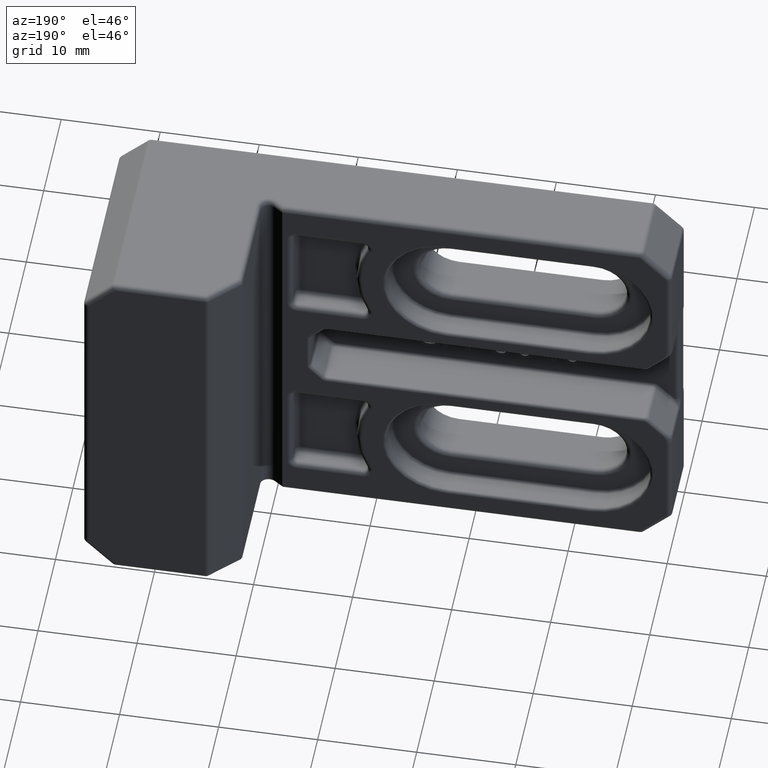
[diagram: clean part render]
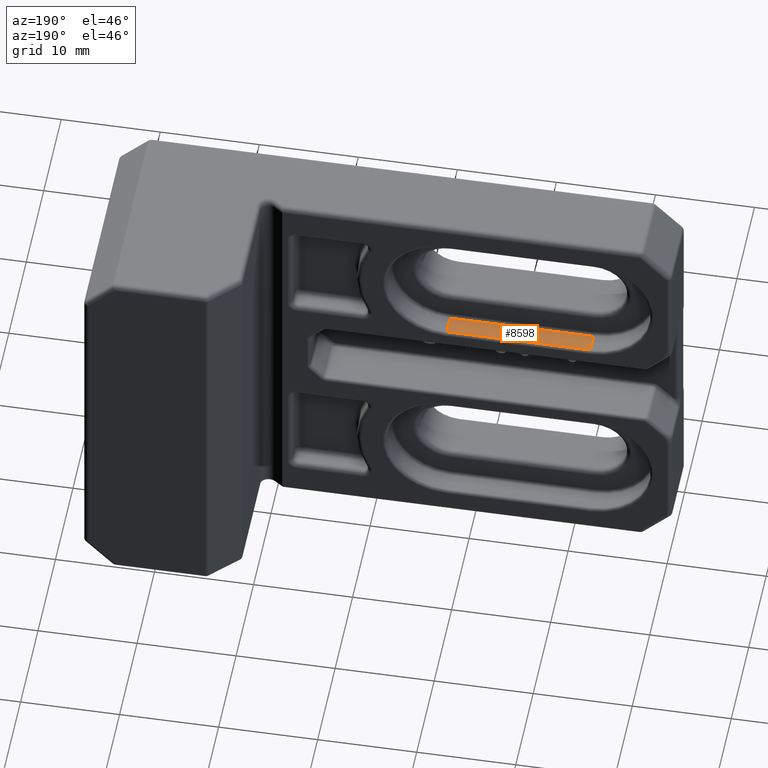
[diagram: same view with one face highlighted and labeled with its STEP entity id]
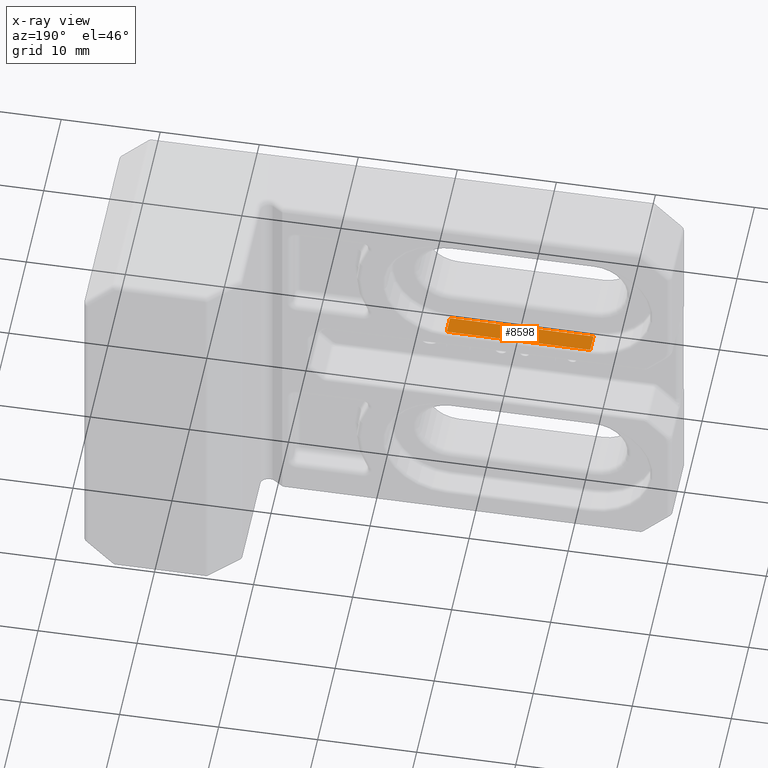
[diagram: x-ray of the same camera — body ghosted, the highlighted face saturated]
A machine part, auxiliary view. The second image highlights one B-rep face of the part: STEP entity #8598.
The next image is the same camera in x-ray: the body ghosted, the highlighted face saturated — about 0% of this face is hidden behind the body in this view.
In plain terms, the highlighted planar face has unit normal (0, 0, -1).
Its self-contained STEP definition (entity closure, byte-faithful):
#140=PLANE('',#9176);
#377=LINE('',#13760,#1091);
#380=LINE('',#13778,#1094);
#382=LINE('',#13784,#1096);
#383=LINE('',#13785,#1097);
#1091=VECTOR('',#10164,14.5);
#1094=VECTOR('',#10187,1.9);
#1096=VECTOR('',#10193,1.9);
#1097=VECTOR('',#10194,14.5);
#2017=FACE_OUTER_BOUND('',#2570,.T.);
#2570=EDGE_LOOP('',(#5939,#5940,#5941,#5942));
#3754=VERTEX_POINT('',#13753);
#3757=VERTEX_POINT('',#13758);
#3762=VERTEX_POINT('',#13777);
#3764=VERTEX_POINT('',#13783);
#4575=EDGE_CURVE('',#3757,#3754,#377,.T.);
#4584=EDGE_CURVE('',#3762,#3754,#380,.T.);
#4587=EDGE_CURVE('',#3764,#3757,#382,.T.);
#4588=EDGE_CURVE('',#3762,#3764,#383,.T.);
#5939=ORIENTED_EDGE('',*,*,#4575,.F.);
#5940=ORIENTED_EDGE('',*,*,#4587,.F.);
#5941=ORIENTED_EDGE('',*,*,#4588,.F.);
#5942=ORIENTED_EDGE('',*,*,#4584,.T.);
#8598=ADVANCED_FACE('',(#2017),#140,.F.);
#9176=AXIS2_PLACEMENT_3D('',#13782,#10191,#10192);
#10164=DIRECTION('',(-1.,-5.35047240783208E-17,-4.59402630879375E-16));
#10187=DIRECTION('',(0.,-1.,0.));
#10191=DIRECTION('center_axis',(4.59402630879375E-16,0.,-1.));
#10192=DIRECTION('ref_axis',(1.,0.,8.88178419700125E-16));
#10193=DIRECTION('',(0.,-1.,0.));
#10194=DIRECTION('',(1.,5.35047240783208E-17,4.59402630879375E-16));
#13753=CARTESIAN_POINT('',(8.25000000000001,5.3,5.14999999966207));
#13758=CARTESIAN_POINT('',(22.75,5.3,5.14999999966208));
#13760=CARTESIAN_POINT('',(11.875,5.3,5.14999999966207));
#13777=CARTESIAN_POINT('',(8.25000000000001,7.2,5.14999999966207));
#13778=CARTESIAN_POINT('',(8.25000000000001,7.5,5.14999999966207));
#13782=CARTESIAN_POINT('Origin',(8.25000000000001,7.5,5.14999999966207));
#13783=CARTESIAN_POINT('',(22.75,7.2,5.14999999966208));
#13784=CARTESIAN_POINT('',(22.75,7.5,5.14999999966208));
#13785=CARTESIAN_POINT('',(4.125,7.2,5.14999999966207));